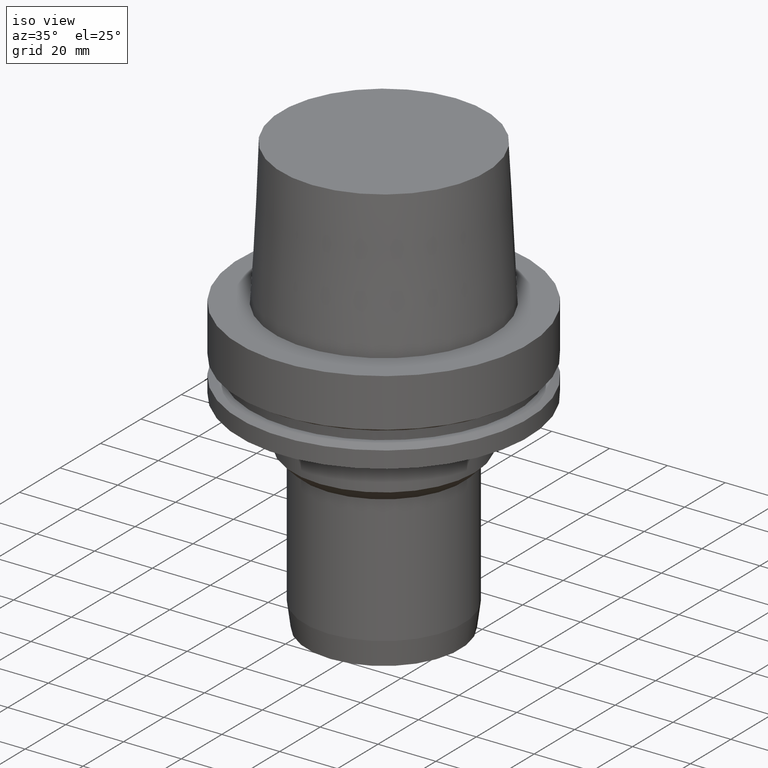
[diagram: clean part render]
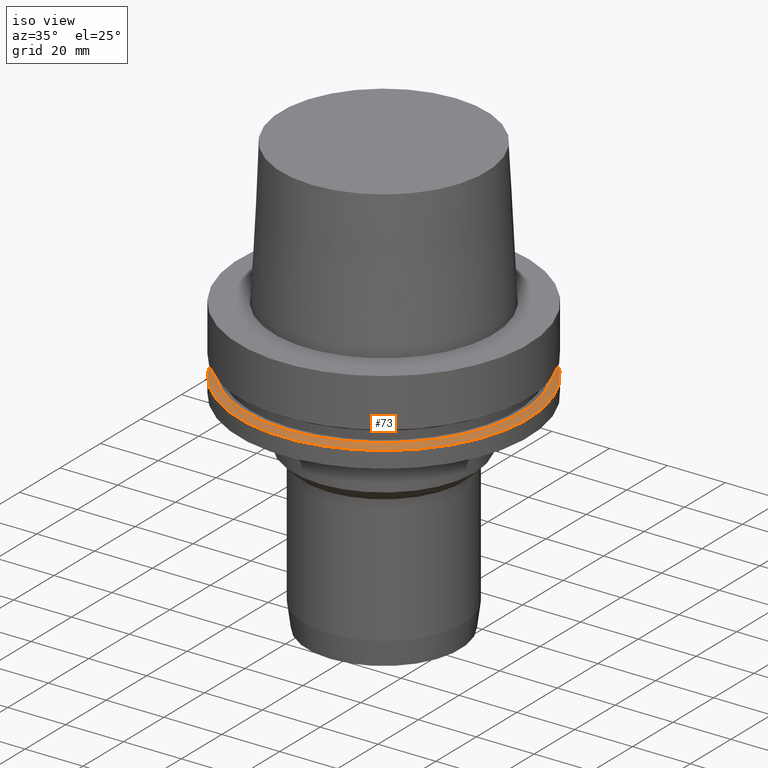
[diagram: same view with one face highlighted and labeled with its STEP entity id]
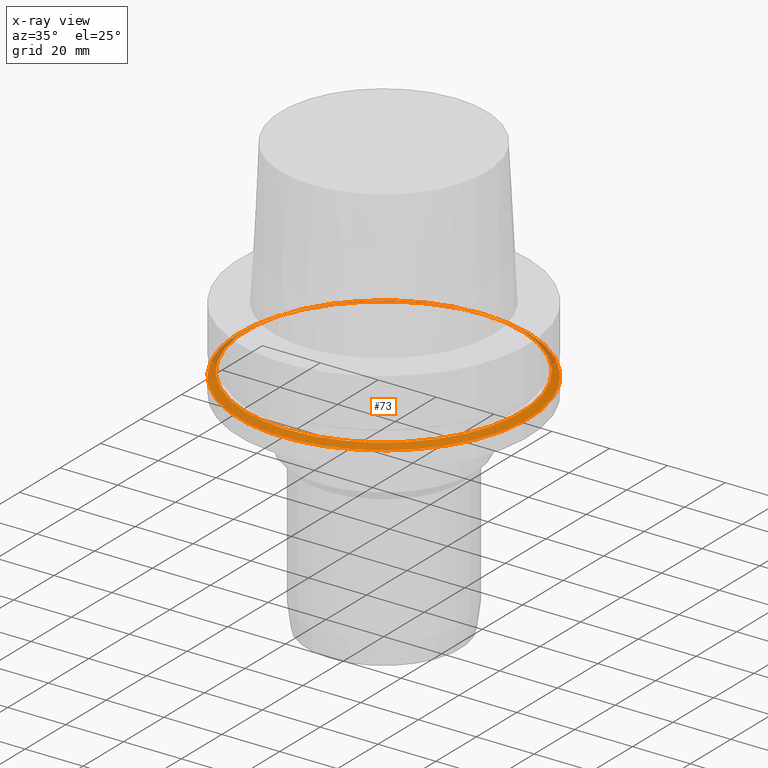
[diagram: x-ray of the same camera — body ghosted, the highlighted face saturated]
A machine part, iso view. The second image highlights one B-rep face of the part: STEP entity #73.
The next image is the same camera in x-ray: the body ghosted, the highlighted face saturated — about 12% of this face is hidden behind the body in this view.
In plain terms, the highlighted conical surface has half-angle 60 deg.
Its self-contained STEP definition (entity closure, byte-faithful):
#59=EDGE_CURVE('Unnamed[1]',#158,#158,#159,.T.);
#73=ADVANCED_FACE('Unnamed[1]',(#178,#179),#180,.T.);
#130=EDGE_CURVE('Unnamed[1]',#270,#270,#271,.T.);
#158=VERTEX_POINT('',#292);
#159=CIRCLE('',#293,47.62259526);
#178=FACE_BOUND('',#317,.T.);
#179=FACE_BOUND('',#318,.T.);
#180=CONICAL_SURFACE('',#319,48.81129763,1.04719755328238);
#270=VERTEX_POINT('',#432);
#271=CIRCLE('',#433,50.0);
#292=CARTESIAN_POINT('',(1.33945743656742E-015,47.62259526,-21.875));
#293=AXIS2_PLACEMENT_3D('',#448,#449,#450);
#317=EDGE_LOOP('',(#471));
#318=EDGE_LOOP('',(#472));
#319=AXIS2_PLACEMENT_3D('',#473,#474,#475);
#432=CARTESIAN_POINT('',(1.42350465615161E-015,50.0,-23.24759526));
#433=AXIS2_PLACEMENT_3D('',#575,#576,#577);
#448=CARTESIAN_POINT('',(1.33945743656742E-015,2.67891487313484E-015,-21.875));
#449=DIRECTION('',(6.12323399573676E-017,1.22464679914752E-016,-1.0));
#450=DIRECTION('',(-1.23259516440801E-032,1.0,1.22464679914752E-016));
#471=ORIENTED_EDGE('',*,*,#130,.F.);
#472=ORIENTED_EDGE('',*,*,#59,.T.);
#473=CARTESIAN_POINT('',(1.38148104635951E-015,2.76296209271903E-015,-22.56129763));
#474=DIRECTION('',(6.12323399573677E-017,1.22464679914711E-016,-1.0));
#475=DIRECTION('',(-1.23259516440792E-032,1.0,1.22464679914711E-016));
#575=CARTESIAN_POINT('',(1.42350465615161E-015,2.84700931230322E-015,-23.24759526));
#576=DIRECTION('',(6.12323399573677E-017,1.22464679914736E-016,-1.0));
#577=DIRECTION('',(-1.23259516440783E-032,1.0,1.22464679914736E-016));